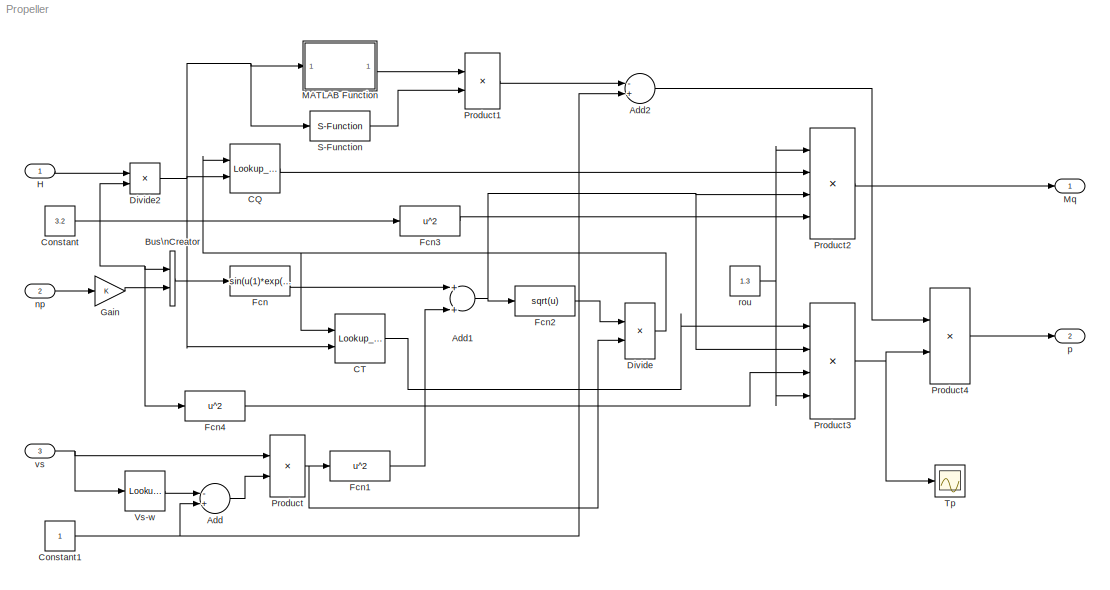
MODEL Propeller
KIND model
BLOCK [Sum] Add
  InputSameDT = off
  Inputs = -+
  OutDataTypeStr = Inherit: Inherit via internal rule
  Ports = [2, 1]
  SID = 18
  SaturateOnIntegerOverflow = off
BLOCK [Sum] Add1
  InputSameDT = off
  OutDataTypeStr = Inherit: Inherit via internal rule
  Ports = [2, 1]
  SID = 20
  SaturateOnIntegerOverflow = off
BLOCK [Sum] Add2
  InputSameDT = off
  Inputs = -+
  OutDataTypeStr = Inherit: Inherit via internal rule
  Ports = [2, 1]
  SID = 19
  SaturateOnIntegerOverflow = off
BLOCK [BusCreator] Bus\nCreator
  DisplayOption = bar
  Inputs = 2
  Ports = [2, 1]
  SID = 24
BLOCK [Lookup_n-D] CQ
  BreakpointsForDimension1 = [1:3]
  BreakpointsForDimension2 = [1:3]
  InternalRulePriority = Speed
  Ports = [2, 1]
  RndMeth = Simplest
  SID = 31
BLOCK [Lookup_n-D] CT
  BreakpointsForDimension1 = [1:3]
  BreakpointsForDimension2 = [1:3]
  InternalRulePriority = Speed
  Ports = [2, 1]
  RndMeth = Simplest
  SID = 30
BLOCK [Constant] Constant
  SID = 4
  Value = 3.2
BLOCK [Constant] Constant1
  SID = 5
BLOCK [Product] Divide
  InputSameDT = off
  Inputs = /*
  OutDataTypeStr = Inherit: Inherit via internal rule
  Ports = [2, 1]
  RndMeth = Floor
  SID = 8
  SaturateOnIntegerOverflow = off
BLOCK [Product] Divide2
  InputSameDT = off
  Inputs = */
  OutDataTypeStr = Inherit: Inherit via internal rule
  Ports = [2, 1]
  RndMeth = Floor
  SID = 16
  SaturateOnIntegerOverflow = off
BLOCK [Fcn] Fcn
  Expr = sin(u(1)*exp(2.3*(-u(2))))
  SID = 11
BLOCK [Fcn] Fcn1
  Expr = u^2
  SID = 12
BLOCK [Fcn] Fcn2
  Expr = sqrt(u)
  SID = 21
BLOCK [Fcn] Fcn3
  Expr = u^2
  SID = 22
BLOCK [Fcn] Fcn4
  Expr = u^2
  SID = 23
BLOCK [Gain] Gain
  OutDataTypeStr = Inherit: Inherit via internal rule
  ParamDataTypeStr = Inherit: Inherit via internal rule
  SID = 7
  SaturateOnIntegerOverflow = off
BLOCK [Inport] H
  IconDisplay = Port number
  SID = 1
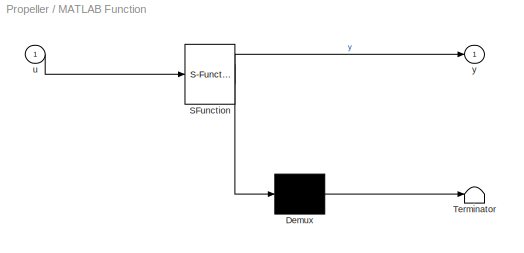
BLOCK [SubSystem] MATLAB Function
  ErrorFcn = Stateflow.Translate.translate
  PermitHierarchicalResolution = ExplicitOnly
  Ports = [1, 1]
  RequestExecContextInheritance = off
  SFBlockType = MATLAB Function
  SID = 10
  TreatAsAtomicUnit = on
BLOCK [Demux] MATLAB Function/ Demux 
  Outputs = 1
  Ports = [1, 1]
  SID = 10::19
BLOCK [S-Function] MATLAB Function/ SFunction 
  EnableBusSupport = off
  FunctionName = sf_sfun
  PortCounts = [1 2]
  Ports = [1, 2]
  SID = 10::18
  Tag = Stateflow S-Function Propeller 2
BLOCK [Terminator] MATLAB Function/ Terminator 
  SID = 10::20
BLOCK [Inport] MATLAB Function/u
  IconDisplay = Port number
  SID = 10::1
BLOCK [Outport] MATLAB Function/y
  IconDisplay = Port number
  SID = 10::5
BLOCK [Outport] Mq
  IconDisplay = Port number
  SID = 27
BLOCK [Product] Product
  InputSameDT = off
  OutDataTypeStr = Inherit: Inherit via internal rule
  Ports = [2, 1]
  RndMeth = Floor
  SID = 13
  SaturateOnIntegerOverflow = off
BLOCK [Product] Product1
  InputSameDT = off
  OutDataTypeStr = Inherit: Inherit via internal rule
  Ports = [2, 1]
  RndMeth = Floor
  SID = 14
  SaturateOnIntegerOverflow = off
BLOCK [Product] Product2
  InputSameDT = off
  Inputs = 4
  OutDataTypeStr = Inherit: Inherit via internal rule
  Ports = [4, 1]
  RndMeth = Floor
  SID = 15
  SaturateOnIntegerOverflow = off
BLOCK [Product] Product3
  InputSameDT = off
  Inputs = 4
  OutDataTypeStr = Inherit: Inherit via internal rule
  Ports = [4, 1]
  RndMeth = Floor
  SID = 25
  SaturateOnIntegerOverflow = off
BLOCK [Product] Product4
  InputSameDT = off
  OutDataTypeStr = Inherit: Inherit via internal rule
  Ports = [2, 1]
  RndMeth = Floor
  SID = 26
  SaturateOnIntegerOverflow = off
BLOCK [S-Function] S-Function
  EnableBusSupport = off
  FunctionName = m
  Ports = [1, 1]
  SID = 17
BLOCK [Scope] Tp
  DataFormat = StructureWithTime
  Floating = off
  NumInputPorts = 1
  Ports = [1]
  SID = 32
  SampleTime = 0
  ShowLegends = off
BLOCK [Lookup_n-D] Vs-w
  BreakpointsForDimension1 = [-5:5]
  InternalRulePriority = Speed
  NumberOfTableDimensions = 1
  Ports = [1, 1]
  RndMeth = Simplest
  SID = 29
  Table = tanh([-5:5])
BLOCK [Inport] np
  IconDisplay = Port number
  Port = 2
  SID = 2
BLOCK [Outport] p
  IconDisplay = Port number
  Port = 2
  SID = 28
BLOCK [Constant] rou
  SID = 6
  Value = 1.3
BLOCK [Inport] vs
  IconDisplay = Port number
  Port = 3
  SID = 3
NET Add1:1 -> Fcn2:1, Product2:3, Product3:2
LINE Add2:1 -> Product4:1
LINE Add:1 -> Product:2
LINE Bus\nCreator:1 -> Fcn:1
LINE CQ:1 -> Product2:2
LINE CT:1 -> Product3:1
NET Constant1:1 -> Add2:2, Add:2
NET Constant:1 -> Bus\nCreator:1, Divide2:2, Fcn3:1, Fcn4:1
NET Divide2:1 -> CQ:2, CT:2, MATLAB Function:1, S-Function:1
NET Divide:1 -> CQ:1, CT:1
LINE Fcn1:1 -> Add1:2
LINE Fcn2:1 -> Divide:1
LINE Fcn3:1 -> Product2:4
LINE Fcn4:1 -> Product3:3
LINE Fcn:1 -> Add1:1
LINE Gain:1 -> Bus\nCreator:2
LINE H:1 -> Divide2:1
LINE MATLAB Function/ Demux :1 -> MATLAB Function/ Terminator :1
LINE MATLAB Function/ SFunction :1 -> MATLAB Function/ Demux :1
LINE MATLAB Function/ SFunction :2 -> MATLAB Function/y:1
LINE MATLAB Function/u:1 -> MATLAB Function/ SFunction :1
LINE MATLAB Function:1 -> Product1:1
LINE Product1:1 -> Add2:1
LINE Product2:1 -> Mq:1
NET Product3:1 -> Product4:2, Tp:1
LINE Product4:1 -> p:1
NET Product:1 -> Divide:2, Fcn1:1
LINE S-Function:1 -> Product1:2
LINE Vs-w:1 -> Add:1
LINE np:1 -> Gain:1
NET rou:1 -> Product2:1, Product3:4
NET vs:1 -> Product:1, Vs-w:1
note: NET lines group one-source signal fan-out (src -> all destinations, sorted); 1:1 wires keep LINE
CHART MATLAB Function states=1 transitions=1
  STATE_LABEL 'eML_blk_kernel()'
